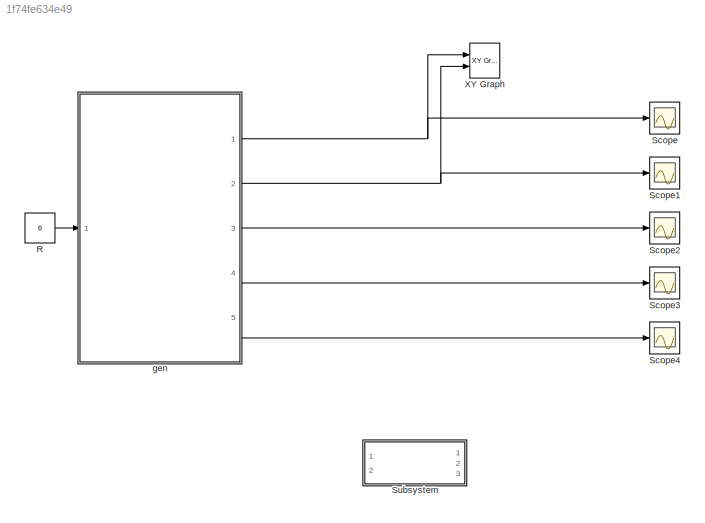
MODEL slx_1f74fe634e49
KIND model
CONFIG AbsTol = auto
CONFIG FixedStep = auto
CONFIG MaxStep = auto
CONFIG MinStep = auto
CONFIG RelTol = 1e-3
CONFIG SampleTimeConstraint = Unconstrained
CONFIG Solver = ode23
CONFIG SolverMode = Auto
CONFIG SolverName = ode23
CONFIG StartTime = 0.0
CONFIG StopTime = 100.0
BLOCK [Constant] R
  Value = 6
BLOCK [Scope] Scope
  Ports = [1]
  ScopeSpecificationString = Simulink.scopes.TimeScopeBlockCfg('CurrentConfiguration', extmgr.ConfigurationSet(extmgr.Configuration('Core','General UI',true),extmgr.Configuration('Core','Source UI',true),extmgr.Configuration('Sources','WiredSimulink',true),extmgr.Configuration('Visuals','Time Domain',true,'SerializedDisplays',{struct('MinYLimReal','-7.5002','MaxYLimReal','7.49952','YLabelReal','','MinYLimMag','0.00000','MaxYL...<+1356ch>
BLOCK [Scope] Scope1
  Ports = [1]
  ScopeSpecificationString = Simulink.scopes.TimeScopeBlockCfg('CurrentConfiguration', extmgr.ConfigurationSet(extmgr.Configuration('Core','General UI',true),extmgr.Configuration('Core','Source UI',true),extmgr.Configuration('Sources','WiredSimulink',true,'DataLoggingVariableName','ScopeData1'),extmgr.Configuration('Visuals','Time Domain',true,'SerializedDisplays',{struct('MinYLimReal','-7.5002','MaxYLimReal','7.49961','YLabe...<+1395ch>
BLOCK [Scope] Scope2
  Ports = [1]
  ScopeSpecificationString = Simulink.scopes.TimeScopeBlockCfg('CurrentConfiguration', extmgr.ConfigurationSet(extmgr.Configuration('Core','General UI',true),extmgr.Configuration('Core','Source UI',true),extmgr.Configuration('Sources','WiredSimulink',true,'DataLoggingVariableName','ScopeData2'),extmgr.Configuration('Visuals','Time Domain',true,'SerializedDisplays',{struct('MinYLimReal','-12.5','MaxYLimReal','112.5','YLabelRea...<+1385ch>
BLOCK [Scope] Scope3
  Ports = [1]
  ScopeSpecificationString = Simulink.scopes.TimeScopeBlockCfg('CurrentConfiguration', extmgr.ConfigurationSet(extmgr.Configuration('Core','General UI',true),extmgr.Configuration('Core','Source UI',true),extmgr.Configuration('Sources','WiredSimulink',true,'DataLoggingVariableName','ScopeData3'),extmgr.Configuration('Visuals','Time Domain',true,'SerializedDisplays',{struct('MinYLimReal','5.00000','MaxYLimReal','7.00000','YLabe...<+1397ch>
BLOCK [Scope] Scope4
  Ports = [1]
  ScopeSpecificationString = Simulink.scopes.TimeScopeBlockCfg('CurrentConfiguration', extmgr.ConfigurationSet(extmgr.Configuration('Core','General UI',true),extmgr.Configuration('Core','Source UI',true),extmgr.Configuration('Sources','WiredSimulink',true,'DataLoggingVariableName','ScopeData4'),extmgr.Configuration('Visuals','Time Domain',true,'SerializedDisplays',{struct('MinYLimReal','0.9','MaxYLimReal','1.1','YLabelReal','...<+1365ch>
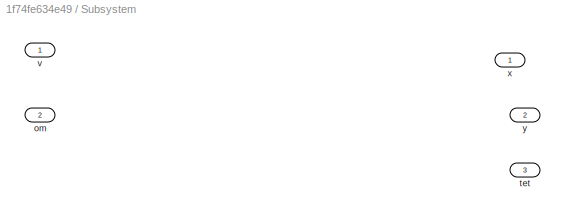
BLOCK [SubSystem] Subsystem
  Ports = [2, 3]
  RequestExecContextInheritance = off
  Variant = off
BLOCK [Inport] Subsystem/om
  IconDisplay = Port number
  Port = 2
BLOCK [Outport] Subsystem/tet
  IconDisplay = Port number
  Port = 3
BLOCK [Inport] Subsystem/v
  IconDisplay = Port number
BLOCK [Outport] Subsystem/x
  IconDisplay = Port number
BLOCK [Outport] Subsystem/y
  IconDisplay = Port number
  Port = 2
BLOCK [Reference] XY Graph  REF=simulink/Sinks/XY Graph
  Ports = [2]
  SourceBlock = simulink/Sinks/XY Graph
  SourceType = XY scope.
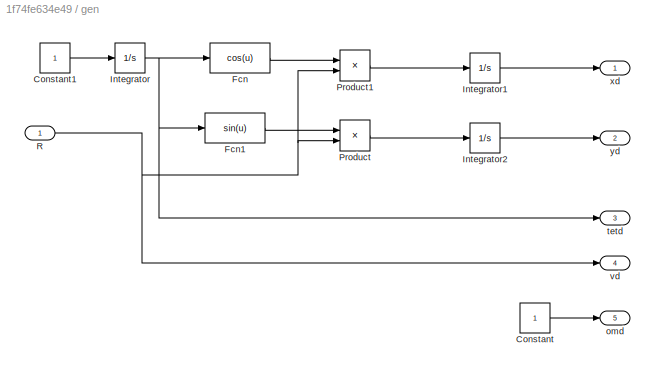
BLOCK [SubSystem] gen
  Ports = [1, 5]
  RequestExecContextInheritance = off
  Variant = off
BLOCK [Constant] gen/Constant
BLOCK [Constant] gen/Constant1
BLOCK [Fcn] gen/Fcn
  Expr = cos(u)
BLOCK [Fcn] gen/Fcn1
  Expr = sin(u)
BLOCK [Integrator] gen/Integrator
  Ports = [1, 1]
BLOCK [Integrator] gen/Integrator1
  Ports = [1, 1]
BLOCK [Integrator] gen/Integrator2
  InitialCondition = -6
  Ports = [1, 1]
BLOCK [Product] gen/Product
  InputSameDT = off
  OutDataTypeStr = Inherit: Inherit via internal rule
  Ports = [2, 1]
  RndMeth = Floor
  SaturateOnIntegerOverflow = off
BLOCK [Product] gen/Product1
  InputSameDT = off
  OutDataTypeStr = Inherit: Inherit via internal rule
  Ports = [2, 1]
  RndMeth = Floor
  SaturateOnIntegerOverflow = off
BLOCK [Inport] gen/R
  IconDisplay = Port number
BLOCK [Outport] gen/omd
  IconDisplay = Port number
  Port = 5
BLOCK [Outport] gen/tetd
  IconDisplay = Port number
  Port = 3
BLOCK [Outport] gen/vd
  IconDisplay = Port number
  Port = 4
BLOCK [Outport] gen/xd
  IconDisplay = Port number
BLOCK [Outport] gen/yd
  IconDisplay = Port number
  Port = 2
LINE R:1 -> gen:1
LINE gen/Constant1:1 -> gen/Integrator:1
LINE gen/Constant:1 -> gen/omd:1
LINE gen/Fcn1:1 -> gen/Product:1
LINE gen/Fcn:1 -> gen/Product1:1
LINE gen/Integrator1:1 -> gen/xd:1
LINE gen/Integrator2:1 -> gen/yd:1
NET gen/Integrator:1 -> gen/Fcn1:1, gen/Fcn:1, gen/tetd:1
LINE gen/Product1:1 -> gen/Integrator1:1
LINE gen/Product:1 -> gen/Integrator2:1
NET gen/R:1 -> gen/Product1:2, gen/Product:2, gen/vd:1
NET gen:1 -> Scope:1, XY Graph:1
NET gen:2 -> Scope1:1, XY Graph:2
LINE gen:3 -> Scope2:1
LINE gen:4 -> Scope3:1
LINE gen:5 -> Scope4:1
note: NET lines group one-source signal fan-out (src -> all destinations, sorted); 1:1 wires keep LINE
